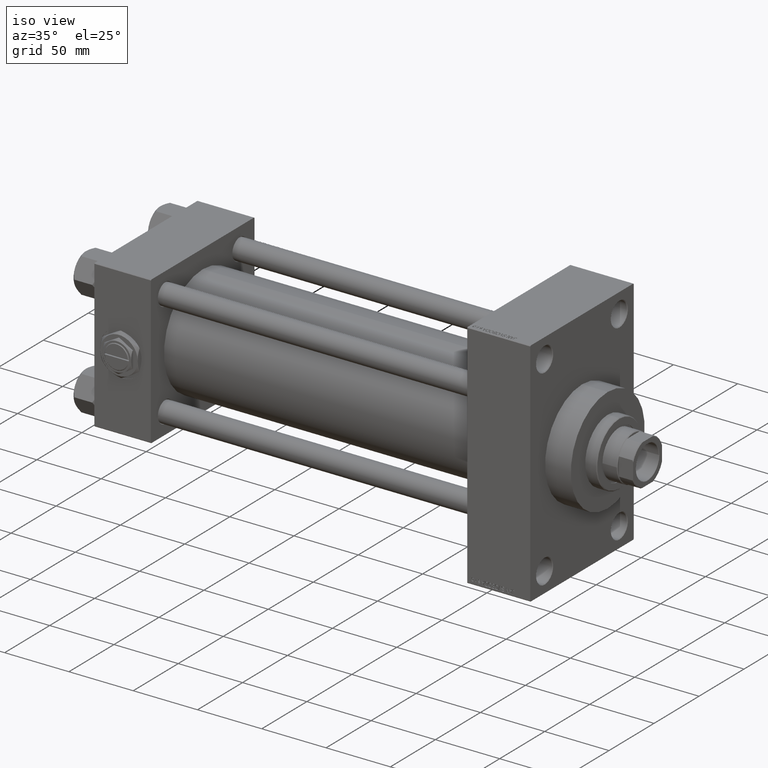
[diagram: clean part render]
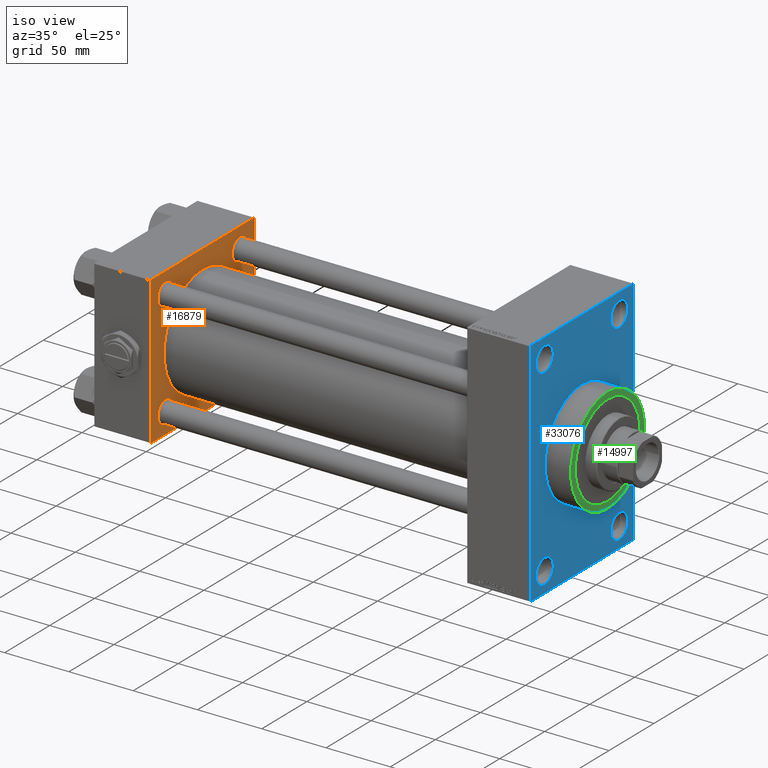
[diagram: same view with three faces highlighted in distinct colors, each labeled with its STEP entity id]
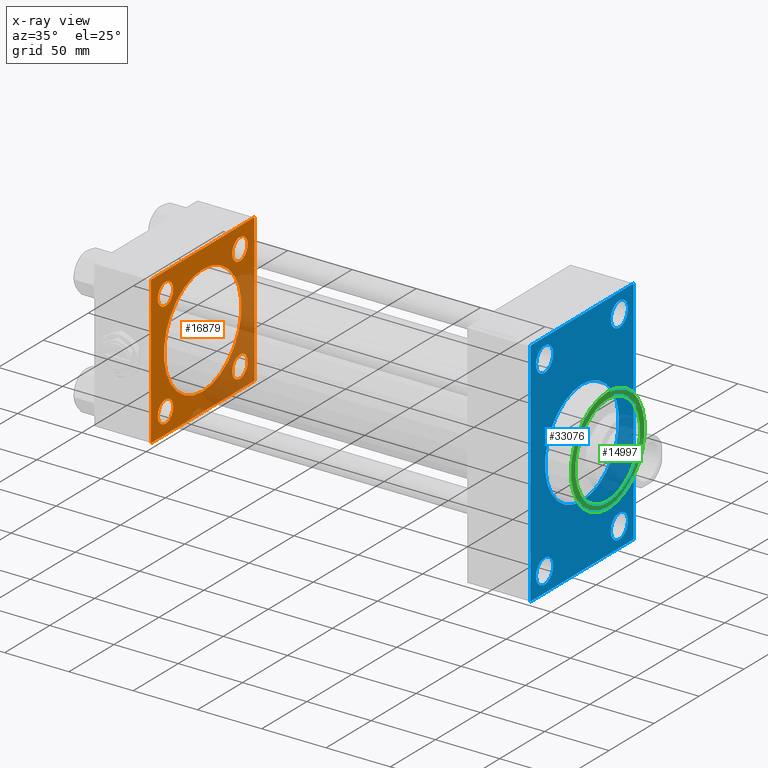
[diagram: x-ray of the same camera — body ghosted, the three highlighted faces saturated]
A machine part, iso view with three faces highlighted in distinct colors.
The next image is the same camera in x-ray (body ghosted, the three faces saturated) — at least one of them is partly hidden behind the body in this view.
Their STEP definitions:

[orange] entity #16879 — the highlighted planar face has unit normal (-1, 0, 0).
#303 = LINE ( 'NONE', #26918, #36625 ) ;
#626 = FACE_BOUND ( 'NONE', #36610, .T. ) ;
#852 = DIRECTION ( 'NONE',  ( -0.000000000000000000, 0.7071067811865376918, 0.7071067811865573427 ) ) ;
#853 = VERTEX_POINT ( 'NONE', #28329 ) ;
#901 = CARTESIAN_POINT ( 'NONE',  ( 44.00000000000000000, -41.34999999999998721, -32.85000000000005826 ) ) ;
#2321 = VECTOR ( 'NONE', #852, 1000.000000000000114 ) ;
#2430 = LINE ( 'NONE', #47950, #36519 ) ;
#3241 = AXIS2_PLACEMENT_3D ( 'NONE', #20501, #35679, #47121 ) ;
#3505 = EDGE_CURVE ( 'NONE', #49082, #28410, #20841, .T. ) ;
#3651 = ORIENTED_EDGE ( 'NONE', *, *, #6758, .F. ) ;
#4539 = EDGE_CURVE ( 'NONE', #13896, #28595, #19366, .T. ) ;
#4927 = ORIENTED_EDGE ( 'NONE', *, *, #42388, .T. ) ;
#4967 = VERTEX_POINT ( 'NONE', #19803 ) ;
#6276 = DIRECTION ( 'NONE',  ( -1.000000000000000000, 0.000000000000000000, -0.000000000000000000 ) ) ;
#6300 = ORIENTED_EDGE ( 'NONE', *, *, #17877, .T. ) ;
#6517 = AXIS2_PLACEMENT_3D ( 'NONE', #11052, #25763, #10815 ) ;
#6531 = AXIS2_PLACEMENT_3D ( 'NONE', #41017, #48474, #38274 ) ;
#6682 = DIRECTION ( 'NONE',  ( 0.000000000000000000, 0.000000000000000000, -1.000000000000000000 ) ) ;
#6758 = EDGE_CURVE ( 'NONE', #31139, #22701, #27710, .T. ) ;
#7434 = CARTESIAN_POINT ( 'NONE',  ( 44.00000000000000000, -41.34999999999998721, -41.35000000000000853 ) ) ;
#7656 = EDGE_LOOP ( 'NONE', ( #26384, #37505 ) ) ;
#8092 = FACE_BOUND ( 'NONE', #23545, .T. ) ;
#8582 = CARTESIAN_POINT ( 'NONE',  ( 44.00000000000000000, 41.34999999999999432, -32.85000000000005116 ) ) ;
#9287 = CARTESIAN_POINT ( 'NONE',  ( 44.00000000000000000, -57.00000000000000711, -57.50000000000000711 ) ) ;
#9547 = DIRECTION ( 'NONE',  ( -1.000000000000000000, 0.000000000000000000, -0.000000000000000000 ) ) ;
#10249 = DIRECTION ( 'NONE',  ( -1.000000000000000000, 0.000000000000000000, -0.000000000000000000 ) ) ;
#10815 = DIRECTION ( 'NONE',  ( 0.000000000000000000, 0.000000000000000000, 1.000000000000000000 ) ) ;
#11010 = CARTESIAN_POINT ( 'NONE',  ( 43.99999999999998579, -2.602085213965210642E-15, 43.00000000000000000 ) ) ;
#11052 = CARTESIAN_POINT ( 'NONE',  ( 44.00000000000000000, 41.34999999999999432, -41.35000000000000142 ) ) ;
#11107 = EDGE_CURVE ( 'NONE', #26900, #32569, #33383, .T. ) ;
#11150 = CARTESIAN_POINT ( 'NONE',  ( 44.00000000000000000, 57.49999999999999289, -57.49999999999999289 ) ) ;
#11758 = DIRECTION ( 'NONE',  ( 0.000000000000000000, -1.000000000000000000, -1.206764157201257045E-16 ) ) ;
#12266 = CARTESIAN_POINT ( 'NONE',  ( 44.00000000000000000, -57.50000000000000711, 57.00000000000000711 ) ) ;
#12775 = LINE ( 'NONE', #9287, #19111 ) ;
#13896 = VERTEX_POINT ( 'NONE', #901 ) ;
#14075 = ORIENTED_EDGE ( 'NONE', *, *, #11107, .T. ) ;
#14321 = EDGE_CURVE ( 'NONE', #853, #45401, #36795, .T. ) ;
#14894 = EDGE_CURVE ( 'NONE', #27938, #45401, #12775, .T. ) ;
#15027 = EDGE_CURVE ( 'NONE', #32569, #26900, #48514, .T. ) ;
#15265 = CARTESIAN_POINT ( 'NONE',  ( 44.00000000000000000, -41.34999999999998721, 32.85000000000005826 ) ) ;
#15454 = CIRCLE ( 'NONE', #46440, 8.499999999999952038 ) ;
#15534 = CARTESIAN_POINT ( 'NONE',  ( 44.00000000000000000, -41.34999999999998721, 49.84999999999996589 ) ) ;
#15971 = CIRCLE ( 'NONE', #28683, 8.499999999999952038 ) ;
#16158 = EDGE_CURVE ( 'NONE', #16420, #4967, #303, .T. ) ;
#16353 = ORIENTED_EDGE ( 'NONE', *, *, #41184, .T. ) ;
#16390 = CARTESIAN_POINT ( 'NONE',  ( 44.00000000000000000, 57.49999999999999289, 57.00000000000003553 ) ) ;
#16420 = VERTEX_POINT ( 'NONE', #16390 ) ;
#16775 = FACE_BOUND ( 'NONE', #34621, .T. ) ;
#16879 = ADVANCED_FACE ( 'NONE', ( #24254, #626, #27498, #8092, #16775, #42664 ), #23256, .F. ) ;
#16974 = EDGE_CURVE ( 'NONE', #27255, #44463, #15971, .T. ) ;
#17335 = DIRECTION ( 'NONE',  ( 0.000000000000000000, 0.000000000000000000, 1.000000000000000000 ) ) ;
#17378 = ORIENTED_EDGE ( 'NONE', *, *, #3505, .T. ) ;
#17877 = EDGE_CURVE ( 'NONE', #46989, #42564, #27931, .T. ) ;
#17885 = ORIENTED_EDGE ( 'NONE', *, *, #30225, .T. ) ;
#17906 = EDGE_CURVE ( 'NONE', #22701, #31139, #23976, .T. ) ;
#17968 = DIRECTION ( 'NONE',  ( 0.000000000000000000, 0.000000000000000000, 1.000000000000000000 ) ) ;
#18249 = EDGE_CURVE ( 'NONE', #42564, #27938, #24863, .T. ) ;
#18680 = CARTESIAN_POINT ( 'NONE',  ( 43.99999999999998579, -2.602085213965210642E-15, 0.000000000000000000 ) ) ;
#18776 = CARTESIAN_POINT ( 'NONE',  ( 43.99999999999998579, 2.663896022368408223E-15, -43.00000000000000000 ) ) ;
#18857 = DIRECTION ( 'NONE',  ( 0.000000000000000000, 0.000000000000000000, 1.000000000000000000 ) ) ;
#19111 = VECTOR ( 'NONE', #38914, 1000.000000000000114 ) ;
#19366 = CIRCLE ( 'NONE', #20201, 8.499999999999952038 ) ;
#19711 = DIRECTION ( 'NONE',  ( -0.000000000000000000, -0.7071067811865376918, -0.7071067811865573427 ) ) ;
#19737 = LINE ( 'NONE', #23980, #2321 ) ;
#19803 = CARTESIAN_POINT ( 'NONE',  ( 44.00000000000000000, 57.00000000000000711, 57.50000000000000711 ) ) ;
#20201 = AXIS2_PLACEMENT_3D ( 'NONE', #7434, #26092, #18857 ) ;
#20260 = VECTOR ( 'NONE', #11758, 1000.000000000000000 ) ;
#20501 = CARTESIAN_POINT ( 'NONE',  ( 44.00000000000000000, 0.000000000000000000, 0.000000000000000000 ) ) ;
#20841 = CIRCLE ( 'NONE', #6531, 8.499999999999952038 ) ;
#22701 = VERTEX_POINT ( 'NONE', #18776 ) ;
#22744 = EDGE_LOOP ( 'NONE', ( #16353, #17378 ) ) ;
#23116 = ORIENTED_EDGE ( 'NONE', *, *, #16158, .T. ) ;
#23175 = AXIS2_PLACEMENT_3D ( 'NONE', #30926, #23702, #34902 ) ;
#23181 = DIRECTION ( 'NONE',  ( -1.000000000000000000, 0.000000000000000000, -0.000000000000000000 ) ) ;
#23200 = CARTESIAN_POINT ( 'NONE',  ( 44.00000000000000000, 57.49999999999999289, 57.50000000000000711 ) ) ;
#23256 = PLANE ( 'NONE',  #3241 ) ;
#23545 = EDGE_LOOP ( 'NONE', ( #47656, #14075 ) ) ;
#23553 = ORIENTED_EDGE ( 'NONE', *, *, #14894, .T. ) ;
#23581 = CARTESIAN_POINT ( 'NONE',  ( 44.00000000000000000, 41.34999999999999432, -49.84999999999995879 ) ) ;
#23702 = DIRECTION ( 'NONE',  ( 1.000000000000000000, -0.000000000000000000, 0.000000000000000000 ) ) ;
#23736 = CARTESIAN_POINT ( 'NONE',  ( 44.00000000000000000, -41.34999999999998721, -49.84999999999996589 ) ) ;
#23976 = CIRCLE ( 'NONE', #23175, 43.00000000000000000 ) ;
#23980 = CARTESIAN_POINT ( 'NONE',  ( 44.00000000000000000, 57.49999999999999289, -57.00000000000000711 ) ) ;
#24254 = FACE_BOUND ( 'NONE', #7656, .T. ) ;
#24534 = CIRCLE ( 'NONE', #41998, 8.499999999999952038 ) ;
#24637 = VECTOR ( 'NONE', #41263, 1000.000000000000000 ) ;
#24863 = LINE ( 'NONE', #36291, #26361 ) ;
#24945 = CARTESIAN_POINT ( 'NONE',  ( 44.00000000000000000, -41.34999999999998721, 41.35000000000000853 ) ) ;
#25763 = DIRECTION ( 'NONE',  ( -1.000000000000000000, 0.000000000000000000, -0.000000000000000000 ) ) ;
#25979 = DIRECTION ( 'NONE',  ( -1.000000000000000000, 0.000000000000000000, -0.000000000000000000 ) ) ;
#26036 = ORIENTED_EDGE ( 'NONE', *, *, #14321, .F. ) ;
#26092 = DIRECTION ( 'NONE',  ( -1.000000000000000000, 0.000000000000000000, -0.000000000000000000 ) ) ;
#26361 = VECTOR ( 'NONE', #6682, 1000.000000000000000 ) ;
#26384 = ORIENTED_EDGE ( 'NONE', *, *, #28386, .T. ) ;
#26636 = CARTESIAN_POINT ( 'NONE',  ( 44.00000000000000000, -57.00000000000003553, 57.49999999999999289 ) ) ;
#26900 = VERTEX_POINT ( 'NONE', #35563 ) ;
#26918 = CARTESIAN_POINT ( 'NONE',  ( 44.00000000000000000, 57.00000000000000711, 57.50000000000000711 ) ) ;
#27156 = DIRECTION ( 'NONE',  ( 0.000000000000000000, 0.000000000000000000, 1.000000000000000000 ) ) ;
#27159 = CARTESIAN_POINT ( 'NONE',  ( 44.00000000000000000, -57.50000000000000711, 57.00000000000000711 ) ) ;
#27255 = VERTEX_POINT ( 'NONE', #23581 ) ;
#27498 = FACE_BOUND ( 'NONE', #22744, .T. ) ;
#27710 = CIRCLE ( 'NONE', #38020, 43.00000000000000000 ) ;
#27931 = LINE ( 'NONE', #12266, #33499 ) ;
#27938 = VERTEX_POINT ( 'NONE', #44809 ) ;
#28329 = CARTESIAN_POINT ( 'NONE',  ( 44.00000000000000000, 57.00000000000002132, -57.49999999999999289 ) ) ;
#28386 = EDGE_CURVE ( 'NONE', #28595, #13896, #15454, .T. ) ;
#28410 = VERTEX_POINT ( 'NONE', #15265 ) ;
#28595 = VERTEX_POINT ( 'NONE', #23736 ) ;
#28683 = AXIS2_PLACEMENT_3D ( 'NONE', #32188, #9547, #17968 ) ;
#29046 = DIRECTION ( 'NONE',  ( 0.000000000000000000, 0.000000000000000000, -1.000000000000000000 ) ) ;
#29154 = DIRECTION ( 'NONE',  ( 0.000000000000000000, 0.000000000000000000, 1.000000000000000000 ) ) ;
#29961 = VERTEX_POINT ( 'NONE', #45668 ) ;
#30225 = EDGE_CURVE ( 'NONE', #4967, #46989, #45826, .T. ) ;
#30926 = CARTESIAN_POINT ( 'NONE',  ( 43.99999999999998579, -2.602085213965210642E-15, 0.000000000000000000 ) ) ;
#31139 = VERTEX_POINT ( 'NONE', #11010 ) ;
#31474 = CARTESIAN_POINT ( 'NONE',  ( 44.00000000000000000, -57.00000000000000711, -57.50000000000000711 ) ) ;
#32188 = CARTESIAN_POINT ( 'NONE',  ( 44.00000000000000000, 41.34999999999999432, -41.35000000000000142 ) ) ;
#32569 = VERTEX_POINT ( 'NONE', #42260 ) ;
#32762 = CIRCLE ( 'NONE', #6517, 8.499999999999952038 ) ;
#32933 = EDGE_LOOP ( 'NONE', ( #26036, #4927, #48707, #23116, #17885, #6300, #43737, #23553 ) ) ;
#33122 = CARTESIAN_POINT ( 'NONE',  ( 44.00000000000000000, 41.34999999999999432, 41.35000000000000142 ) ) ;
#33383 = CIRCLE ( 'NONE', #44512, 8.499999999999952038 ) ;
#33499 = VECTOR ( 'NONE', #19711, 1000.000000000000114 ) ;
#34621 = EDGE_LOOP ( 'NONE', ( #3651, #40829 ) ) ;
#34902 = DIRECTION ( 'NONE',  ( 0.000000000000000000, 0.000000000000000000, 1.000000000000000000 ) ) ;
#35563 = CARTESIAN_POINT ( 'NONE',  ( 44.00000000000000000, 41.34999999999999432, 49.84999999999995879 ) ) ;
#35679 = DIRECTION ( 'NONE',  ( -1.000000000000000000, 0.000000000000000000, -0.000000000000000000 ) ) ;
#35821 = AXIS2_PLACEMENT_3D ( 'NONE', #33122, #6276, #29154 ) ;
#36145 = DIRECTION ( 'NONE',  ( 0.000000000000000000, 0.000000000000000000, 1.000000000000000000 ) ) ;
#36261 = CARTESIAN_POINT ( 'NONE',  ( 44.00000000000000000, -41.34999999999998721, -41.35000000000000853 ) ) ;
#36291 = CARTESIAN_POINT ( 'NONE',  ( 44.00000000000000000, -57.50000000000000711, 57.49999999999999289 ) ) ;
#36519 = VECTOR ( 'NONE', #29046, 1000.000000000000000 ) ;
#36610 = EDGE_LOOP ( 'NONE', ( #47595, #47695 ) ) ;
#36625 = VECTOR ( 'NONE', #42346, 1000.000000000000114 ) ;
#36795 = LINE ( 'NONE', #11150, #24637 ) ;
#37505 = ORIENTED_EDGE ( 'NONE', *, *, #4539, .T. ) ;
#38020 = AXIS2_PLACEMENT_3D ( 'NONE', #18680, #49025, #27156 ) ;
#38274 = DIRECTION ( 'NONE',  ( 0.000000000000000000, 0.000000000000000000, 1.000000000000000000 ) ) ;
#38369 = DIRECTION ( 'NONE',  ( 0.000000000000000000, 0.000000000000000000, 1.000000000000000000 ) ) ;
#38914 = DIRECTION ( 'NONE',  ( 0.000000000000000000, 0.7071067811865474617, -0.7071067811865474617 ) ) ;
#40829 = ORIENTED_EDGE ( 'NONE', *, *, #17906, .F. ) ;
#41017 = CARTESIAN_POINT ( 'NONE',  ( 44.00000000000000000, -41.34999999999998721, 41.35000000000000853 ) ) ;
#41184 = EDGE_CURVE ( 'NONE', #28410, #49082, #24534, .T. ) ;
#41263 = DIRECTION ( 'NONE',  ( 0.000000000000000000, -1.000000000000000000, -1.206764157201257045E-16 ) ) ;
#41998 = AXIS2_PLACEMENT_3D ( 'NONE', #24945, #10249, #36145 ) ;
#42260 = CARTESIAN_POINT ( 'NONE',  ( 44.00000000000000000, 41.34999999999999432, 32.85000000000005116 ) ) ;
#42346 = DIRECTION ( 'NONE',  ( 0.000000000000000000, -0.7071067811865573427, 0.7071067811865376918 ) ) ;
#42388 = EDGE_CURVE ( 'NONE', #853, #29961, #19737, .T. ) ;
#42564 = VERTEX_POINT ( 'NONE', #27159 ) ;
#42664 = FACE_OUTER_BOUND ( 'NONE', #32933, .T. ) ;
#43737 = ORIENTED_EDGE ( 'NONE', *, *, #18249, .T. ) ;
#43763 = EDGE_CURVE ( 'NONE', #16420, #29961, #2430, .T. ) ;
#44463 = VERTEX_POINT ( 'NONE', #8582 ) ;
#44512 = AXIS2_PLACEMENT_3D ( 'NONE', #45305, #23181, #38369 ) ;
#44809 = CARTESIAN_POINT ( 'NONE',  ( 44.00000000000000000, -57.50000000000000711, -57.00000000000000711 ) ) ;
#45305 = CARTESIAN_POINT ( 'NONE',  ( 44.00000000000000000, 41.34999999999999432, 41.35000000000000142 ) ) ;
#45401 = VERTEX_POINT ( 'NONE', #31474 ) ;
#45668 = CARTESIAN_POINT ( 'NONE',  ( 44.00000000000000000, 57.49999999999999289, -57.00000000000000711 ) ) ;
#45826 = LINE ( 'NONE', #23200, #20260 ) ;
#46440 = AXIS2_PLACEMENT_3D ( 'NONE', #36261, #25979, #17335 ) ;
#46989 = VERTEX_POINT ( 'NONE', #26636 ) ;
#47121 = DIRECTION ( 'NONE',  ( -0.000000000000000000, 0.000000000000000000, 1.000000000000000000 ) ) ;
#47595 = ORIENTED_EDGE ( 'NONE', *, *, #16974, .T. ) ;
#47656 = ORIENTED_EDGE ( 'NONE', *, *, #15027, .T. ) ;
#47695 = ORIENTED_EDGE ( 'NONE', *, *, #49160, .T. ) ;
#47950 = CARTESIAN_POINT ( 'NONE',  ( 44.00000000000000000, 57.49999999999999289, 57.50000000000000711 ) ) ;
#48474 = DIRECTION ( 'NONE',  ( -1.000000000000000000, 0.000000000000000000, -0.000000000000000000 ) ) ;
#48514 = CIRCLE ( 'NONE', #35821, 8.499999999999952038 ) ;
#48707 = ORIENTED_EDGE ( 'NONE', *, *, #43763, .F. ) ;
#49025 = DIRECTION ( 'NONE',  ( 1.000000000000000000, -0.000000000000000000, 0.000000000000000000 ) ) ;
#49082 = VERTEX_POINT ( 'NONE', #15534 ) ;
#49160 = EDGE_CURVE ( 'NONE', #44463, #27255, #32762, .T. ) ;

[blue] entity #33076 — the highlighted planar face has unit normal (-1, 0, 0).
#717 = EDGE_CURVE ( 'NONE', #15931, #47704, #21504, .T. ) ;
#752 = DIRECTION ( 'NONE',  ( 0.000000000000000000, 0.000000000000000000, 1.000000000000000000 ) ) ;
#834 = VERTEX_POINT ( 'NONE', #35796 ) ;
#938 = EDGE_CURVE ( 'NONE', #48925, #45868, #40507, .T. ) ;
#946 = CIRCLE ( 'NONE', #1746, 9.500000000000063949 ) ;
#1033 = DIRECTION ( 'NONE',  ( -1.000000000000000000, 0.000000000000000000, -0.000000000000000000 ) ) ;
#1566 = AXIS2_PLACEMENT_3D ( 'NONE', #13625, #25560, #40739 ) ;
#1666 = CIRCLE ( 'NONE', #47708, 41.00000000000000000 ) ;
#1746 = AXIS2_PLACEMENT_3D ( 'NONE', #32561, #48893, #14796 ) ;
#2242 = ORIENTED_EDGE ( 'NONE', *, *, #17632, .T. ) ;
#2615 = CARTESIAN_POINT ( 'NONE',  ( 338.9999999999999432, -41.49999999999999289, 84.00000000000007105 ) ) ;
#2622 = EDGE_CURVE ( 'NONE', #41607, #43762, #946, .T. ) ;
#3491 = VECTOR ( 'NONE', #15301, 1000.000000000000000 ) ;
#3712 = AXIS2_PLACEMENT_3D ( 'NONE', #29301, #32550, #9913 ) ;
#3940 = CARTESIAN_POINT ( 'NONE',  ( 338.9999999999999432, 41.50000000000000711, 64.99999999999994316 ) ) ;
#4193 = ORIENTED_EDGE ( 'NONE', *, *, #2622, .T. ) ;
#4478 = CARTESIAN_POINT ( 'NONE',  ( 338.9999999999999432, 41.50000000000000711, -74.50000000000000000 ) ) ;
#4602 = DIRECTION ( 'NONE',  ( -0.000000000000000000, 0.000000000000000000, 1.000000000000000000 ) ) ;
#4710 = ORIENTED_EDGE ( 'NONE', *, *, #33581, .F. ) ;
#4787 = ORIENTED_EDGE ( 'NONE', *, *, #34137, .T. ) ;
#5222 = VERTEX_POINT ( 'NONE', #25977 ) ;
#5316 = VERTEX_POINT ( 'NONE', #8323 ) ;
#6057 = CARTESIAN_POINT ( 'NONE',  ( 338.9999999999999432, -57.50000000000002132, -89.50000000000002842 ) ) ;
#7156 = DIRECTION ( 'NONE',  ( 0.000000000000000000, 0.000000000000000000, -1.000000000000000000 ) ) ;
#7646 = DIRECTION ( 'NONE',  ( 1.000000000000000000, 0.000000000000000000, 0.000000000000000000 ) ) ;
#8227 = EDGE_CURVE ( 'NONE', #8405, #21241, #37263, .T. ) ;
#8323 = CARTESIAN_POINT ( 'NONE',  ( 338.9999999999999432, 57.00000000000003553, -90.00000000000000000 ) ) ;
#8405 = VERTEX_POINT ( 'NONE', #44623 ) ;
#8586 = DIRECTION ( 'NONE',  ( -1.000000000000000000, 0.000000000000000000, -0.000000000000000000 ) ) ;
#8680 = DIRECTION ( 'NONE',  ( 0.000000000000000000, -0.7071067811865867636, 0.7071067811865081598 ) ) ;
#8698 = ORIENTED_EDGE ( 'NONE', *, *, #11935, .F. ) ;
#9080 = FACE_OUTER_BOUND ( 'NONE', #31181, .T. ) ;
#9453 = EDGE_CURVE ( 'NONE', #834, #22158, #22985, .T. ) ;
#9913 = DIRECTION ( 'NONE',  ( 0.000000000000000000, 0.000000000000000000, 1.000000000000000000 ) ) ;
#11131 = EDGE_LOOP ( 'NONE', ( #37775, #49048 ) ) ;
#11935 = EDGE_CURVE ( 'NONE', #34794, #25426, #1666, .T. ) ;
#12272 = VERTEX_POINT ( 'NONE', #6057 ) ;
#12472 = AXIS2_PLACEMENT_3D ( 'NONE', #42230, #7646, #7156 ) ;
#12575 = DIRECTION ( 'NONE',  ( 0.000000000000000000, 0.000000000000000000, 1.000000000000000000 ) ) ;
#12799 = FACE_BOUND ( 'NONE', #34371, .T. ) ;
#13625 = CARTESIAN_POINT ( 'NONE',  ( 338.9999999999999432, -41.49999999999999289, -74.49999999999998579 ) ) ;
#13813 = EDGE_CURVE ( 'NONE', #47704, #15931, #45279, .T. ) ;
#14144 = DIRECTION ( 'NONE',  ( 0.000000000000000000, -1.000000000000000000, -1.206764157201257045E-16 ) ) ;
#14242 = LINE ( 'NONE', #44353, #45390 ) ;
#14453 = ORIENTED_EDGE ( 'NONE', *, *, #32351, .F. ) ;
#14796 = DIRECTION ( 'NONE',  ( 0.000000000000000000, 0.000000000000000000, 1.000000000000000000 ) ) ;
#15289 = ORIENTED_EDGE ( 'NONE', *, *, #9453, .T. ) ;
#15301 = DIRECTION ( 'NONE',  ( -0.000000000000000000, -0.7071067811865131558, -0.7071067811865818786 ) ) ;
#15783 = FACE_BOUND ( 'NONE', #43573, .T. ) ;
#15931 = VERTEX_POINT ( 'NONE', #35907 ) ;
#15939 = CARTESIAN_POINT ( 'NONE',  ( 338.9999999999999432, 41.50000000000000711, 74.50000000000001421 ) ) ;
#15986 = VECTOR ( 'NONE', #29781, 1000.000000000000000 ) ;
#16469 = DIRECTION ( 'NONE',  ( -0.000000000000000000, 0.7071067811865181518, 0.7071067811865769936 ) ) ;
#16615 = ORIENTED_EDGE ( 'NONE', *, *, #33536, .T. ) ;
#17006 = CARTESIAN_POINT ( 'NONE',  ( 338.9999999999999432, 0.000000000000000000, 41.00000000000000000 ) ) ;
#17632 = EDGE_CURVE ( 'NONE', #29131, #12272, #14242, .T. ) ;
#18016 = CIRCLE ( 'NONE', #12472, 41.00000000000000000 ) ;
#18393 = EDGE_LOOP ( 'NONE', ( #4710, #8698 ) ) ;
#19198 = CARTESIAN_POINT ( 'NONE',  ( 338.9999999999999432, 57.49999999999997158, 89.99999999999998579 ) ) ;
#19696 = AXIS2_PLACEMENT_3D ( 'NONE', #15939, #1033, #35101 ) ;
#20265 = FACE_BOUND ( 'NONE', #11131, .T. ) ;
#20351 = CARTESIAN_POINT ( 'NONE',  ( 338.9999999999999432, 56.99999999999992184, 89.99999999999998579 ) ) ;
#20558 = CARTESIAN_POINT ( 'NONE',  ( 338.9999999999999432, 0.000000000000000000, 0.000000000000000000 ) ) ;
#21241 = VERTEX_POINT ( 'NONE', #2615 ) ;
#21427 = ORIENTED_EDGE ( 'NONE', *, *, #35734, .T. ) ;
#21504 = CIRCLE ( 'NONE', #38216, 9.500000000000063949 ) ;
#22158 = VERTEX_POINT ( 'NONE', #35559 ) ;
#22650 = EDGE_CURVE ( 'NONE', #5222, #29131, #38456, .T. ) ;
#22787 = CARTESIAN_POINT ( 'NONE',  ( 338.9999999999999432, -41.49999999999999289, 74.50000000000001421 ) ) ;
#22847 = VECTOR ( 'NONE', #14144, 1000.000000000000000 ) ;
#22985 = CIRCLE ( 'NONE', #1566, 9.499999999999896971 ) ;
#24253 = PLANE ( 'NONE',  #33960 ) ;
#24267 = DIRECTION ( 'NONE',  ( 0.000000000000000000, 0.7071067811865965336, -0.7071067811864985009 ) ) ;
#24846 = DIRECTION ( 'NONE',  ( 0.000000000000000000, 0.000000000000000000, 1.000000000000000000 ) ) ;
#25033 = DIRECTION ( 'NONE',  ( 1.000000000000000000, 0.000000000000000000, 0.000000000000000000 ) ) ;
#25079 = CARTESIAN_POINT ( 'NONE',  ( 338.9999999999999432, 41.50000000000000711, 84.00000000000007105 ) ) ;
#25226 = EDGE_CURVE ( 'NONE', #21241, #8405, #41708, .T. ) ;
#25426 = VERTEX_POINT ( 'NONE', #17006 ) ;
#25560 = DIRECTION ( 'NONE',  ( -1.000000000000000000, 0.000000000000000000, -0.000000000000000000 ) ) ;
#25819 = CARTESIAN_POINT ( 'NONE',  ( 338.9999999999999432, 57.49999999999997158, 89.99999999999998579 ) ) ;
#25977 = CARTESIAN_POINT ( 'NONE',  ( 338.9999999999999432, -57.00000000000007105, 89.99999999999997158 ) ) ;
#26038 = DIRECTION ( 'NONE',  ( 0.000000000000000000, 0.000000000000000000, 1.000000000000000000 ) ) ;
#26133 = EDGE_LOOP ( 'NONE', ( #4193, #21427 ) ) ;
#26539 = DIRECTION ( 'NONE',  ( -1.000000000000000000, 0.000000000000000000, -0.000000000000000000 ) ) ;
#27261 = LINE ( 'NONE', #42675, #29946 ) ;
#27342 = LINE ( 'NONE', #20351, #46698 ) ;
#27608 = DIRECTION ( 'NONE',  ( -1.000000000000000000, 0.000000000000000000, -0.000000000000000000 ) ) ;
#27617 = ORIENTED_EDGE ( 'NONE', *, *, #36331, .T. ) ;
#27981 = FACE_BOUND ( 'NONE', #26133, .T. ) ;
#28177 = ORIENTED_EDGE ( 'NONE', *, *, #717, .T. ) ;
#28992 = AXIS2_PLACEMENT_3D ( 'NONE', #47465, #36275, #24846 ) ;
#29131 = VERTEX_POINT ( 'NONE', #36266 ) ;
#29301 = CARTESIAN_POINT ( 'NONE',  ( 338.9999999999999432, -41.49999999999999289, -74.49999999999998579 ) ) ;
#29431 = DIRECTION ( 'NONE',  ( 0.000000000000000000, 0.000000000000000000, -1.000000000000000000 ) ) ;
#29781 = DIRECTION ( 'NONE',  ( 0.000000000000000000, 3.854941057726238467E-17, -1.000000000000000000 ) ) ;
#29919 = ORIENTED_EDGE ( 'NONE', *, *, #22650, .T. ) ;
#29946 = VECTOR ( 'NONE', #24267, 1000.000000000000114 ) ;
#30456 = EDGE_CURVE ( 'NONE', #5316, #45868, #38883, .T. ) ;
#30588 = CARTESIAN_POINT ( 'NONE',  ( 338.9999999999999432, 41.50000000000000711, -84.00000000000005684 ) ) ;
#30692 = ORIENTED_EDGE ( 'NONE', *, *, #938, .F. ) ;
#31181 = EDGE_LOOP ( 'NONE', ( #2242, #4787, #14453, #36649, #30692, #43282, #27617, #29919 ) ) ;
#32351 = EDGE_CURVE ( 'NONE', #5316, #36302, #36794, .T. ) ;
#32488 = DIRECTION ( 'NONE',  ( 0.000000000000000000, 0.000000000000000000, -1.000000000000000000 ) ) ;
#32550 = DIRECTION ( 'NONE',  ( -1.000000000000000000, 0.000000000000000000, -0.000000000000000000 ) ) ;
#32561 = CARTESIAN_POINT ( 'NONE',  ( 338.9999999999999432, 41.50000000000000711, 74.50000000000001421 ) ) ;
#32588 = EDGE_CURVE ( 'NONE', #48925, #37931, #27342, .T. ) ;
#33076 = ADVANCED_FACE ( 'NONE', ( #20265, #12799, #15783, #27981, #38937, #9080 ), #24253, .F. ) ;
#33336 = CARTESIAN_POINT ( 'NONE',  ( 338.9999999999999432, 57.49999999999997868, -89.49999999999995737 ) ) ;
#33536 = EDGE_CURVE ( 'NONE', #22158, #834, #35506, .T. ) ;
#33581 = EDGE_CURVE ( 'NONE', #25426, #34794, #18016, .T. ) ;
#33960 = AXIS2_PLACEMENT_3D ( 'NONE', #42160, #8586, #4602 ) ;
#34137 = EDGE_CURVE ( 'NONE', #12272, #36302, #27261, .T. ) ;
#34371 = EDGE_LOOP ( 'NONE', ( #16615, #15289 ) ) ;
#34645 = CARTESIAN_POINT ( 'NONE',  ( 338.9999999999999432, -57.00000000000002132, -90.00000000000001421 ) ) ;
#34718 = DIRECTION ( 'NONE',  ( -1.000000000000000000, 0.000000000000000000, -0.000000000000000000 ) ) ;
#34794 = VERTEX_POINT ( 'NONE', #48169 ) ;
#34890 = DIRECTION ( 'NONE',  ( 0.000000000000000000, -1.000000000000000000, -1.206764157201257291E-16 ) ) ;
#35101 = DIRECTION ( 'NONE',  ( 0.000000000000000000, 0.000000000000000000, 1.000000000000000000 ) ) ;
#35255 = CARTESIAN_POINT ( 'NONE',  ( 338.9999999999999432, 57.49999999999997158, 89.49999999999998579 ) ) ;
#35506 = CIRCLE ( 'NONE', #3712, 9.499999999999896971 ) ;
#35559 = CARTESIAN_POINT ( 'NONE',  ( 338.9999999999999432, -41.49999999999999289, -83.99999999999988631 ) ) ;
#35734 = EDGE_CURVE ( 'NONE', #43762, #41607, #43530, .T. ) ;
#35796 = CARTESIAN_POINT ( 'NONE',  ( 338.9999999999999432, -41.49999999999999289, -65.00000000000008527 ) ) ;
#35907 = CARTESIAN_POINT ( 'NONE',  ( 338.9999999999999432, 41.50000000000000711, -64.99999999999992895 ) ) ;
#36266 = CARTESIAN_POINT ( 'NONE',  ( 338.9999999999999432, -57.50000000000002132, 89.49999999999997158 ) ) ;
#36275 = DIRECTION ( 'NONE',  ( -1.000000000000000000, 0.000000000000000000, -0.000000000000000000 ) ) ;
#36302 = VERTEX_POINT ( 'NONE', #34645 ) ;
#36310 = CARTESIAN_POINT ( 'NONE',  ( 338.9999999999999432, 57.49999999999997868, -90.00000000000000000 ) ) ;
#36331 = EDGE_CURVE ( 'NONE', #37931, #5222, #45819, .T. ) ;
#36649 = ORIENTED_EDGE ( 'NONE', *, *, #30456, .T. ) ;
#36794 = LINE ( 'NONE', #36310, #22847 ) ;
#37263 = CIRCLE ( 'NONE', #46009, 9.500000000000063949 ) ;
#37775 = ORIENTED_EDGE ( 'NONE', *, *, #8227, .T. ) ;
#37931 = VERTEX_POINT ( 'NONE', #49142 ) ;
#37941 = CARTESIAN_POINT ( 'NONE',  ( 338.9999999999999432, -57.50000000000002132, 89.49999999999997158 ) ) ;
#38216 = AXIS2_PLACEMENT_3D ( 'NONE', #4478, #27608, #752 ) ;
#38456 = LINE ( 'NONE', #37941, #3491 ) ;
#38883 = LINE ( 'NONE', #43339, #39383 ) ;
#38937 = FACE_BOUND ( 'NONE', #18393, .T. ) ;
#39383 = VECTOR ( 'NONE', #16469, 1000.000000000000000 ) ;
#40507 = LINE ( 'NONE', #25819, #15986 ) ;
#40739 = DIRECTION ( 'NONE',  ( 0.000000000000000000, 0.000000000000000000, 1.000000000000000000 ) ) ;
#41607 = VERTEX_POINT ( 'NONE', #3940 ) ;
#41708 = CIRCLE ( 'NONE', #28992, 9.500000000000063949 ) ;
#41851 = ORIENTED_EDGE ( 'NONE', *, *, #13813, .T. ) ;
#42160 = CARTESIAN_POINT ( 'NONE',  ( 338.9999999999999432, 0.000000000000000000, 0.000000000000000000 ) ) ;
#42230 = CARTESIAN_POINT ( 'NONE',  ( 338.9999999999999432, 0.000000000000000000, 0.000000000000000000 ) ) ;
#42675 = CARTESIAN_POINT ( 'NONE',  ( 338.9999999999999432, -57.00000000000002132, -90.00000000000001421 ) ) ;
#42934 = AXIS2_PLACEMENT_3D ( 'NONE', #46656, #34718, #12575 ) ;
#43282 = ORIENTED_EDGE ( 'NONE', *, *, #32588, .T. ) ;
#43339 = CARTESIAN_POINT ( 'NONE',  ( 338.9999999999999432, 57.49999999999997868, -89.50000000000001421 ) ) ;
#43530 = CIRCLE ( 'NONE', #19696, 9.500000000000063949 ) ;
#43573 = EDGE_LOOP ( 'NONE', ( #41851, #28177 ) ) ;
#43762 = VERTEX_POINT ( 'NONE', #25079 ) ;
#44353 = CARTESIAN_POINT ( 'NONE',  ( 338.9999999999999432, -57.50000000000002132, 89.99999999999997158 ) ) ;
#44623 = CARTESIAN_POINT ( 'NONE',  ( 338.9999999999999432, -41.49999999999999289, 64.99999999999994316 ) ) ;
#45279 = CIRCLE ( 'NONE', #42934, 9.500000000000063949 ) ;
#45390 = VECTOR ( 'NONE', #29431, 1000.000000000000000 ) ;
#45819 = LINE ( 'NONE', #19198, #49089 ) ;
#45868 = VERTEX_POINT ( 'NONE', #33336 ) ;
#46009 = AXIS2_PLACEMENT_3D ( 'NONE', #22787, #26539, #26038 ) ;
#46656 = CARTESIAN_POINT ( 'NONE',  ( 338.9999999999999432, 41.50000000000000711, -74.50000000000000000 ) ) ;
#46698 = VECTOR ( 'NONE', #8680, 1000.000000000000000 ) ;
#47465 = CARTESIAN_POINT ( 'NONE',  ( 338.9999999999999432, -41.49999999999999289, 74.50000000000001421 ) ) ;
#47704 = VERTEX_POINT ( 'NONE', #30588 ) ;
#47708 = AXIS2_PLACEMENT_3D ( 'NONE', #20558, #25033, #32488 ) ;
#48169 = CARTESIAN_POINT ( 'NONE',  ( 338.9999999999999432, 5.021051876504148963E-15, -41.00000000000000000 ) ) ;
#48893 = DIRECTION ( 'NONE',  ( -1.000000000000000000, 0.000000000000000000, -0.000000000000000000 ) ) ;
#48925 = VERTEX_POINT ( 'NONE', #35255 ) ;
#49048 = ORIENTED_EDGE ( 'NONE', *, *, #25226, .T. ) ;
#49089 = VECTOR ( 'NONE', #34890, 1000.000000000000000 ) ;
#49142 = CARTESIAN_POINT ( 'NONE',  ( 338.9999999999999432, 56.99999999999992184, 89.99999999999998579 ) ) ;

[green] entity #14997 — the highlighted planar face has unit normal (1, 0, 0).
#751 = AXIS2_PLACEMENT_3D ( 'NONE', #36683, #44140, #5857 ) ;
#5857 = DIRECTION ( 'NONE',  ( 0.000000000000000000, 0.000000000000000000, -1.000000000000000000 ) ) ;
#6621 = CARTESIAN_POINT ( 'NONE',  ( 359.0000000000000000, 0.000000000000000000, 0.000000000000000000 ) ) ;
#7116 = AXIS2_PLACEMENT_3D ( 'NONE', #47399, #13328, #31513 ) ;
#7122 = ORIENTED_EDGE ( 'NONE', *, *, #43557, .T. ) ;
#7389 = CARTESIAN_POINT ( 'NONE',  ( 359.0000000000000000, 5.021051876504148963E-15, -41.00000000000000000 ) ) ;
#8670 = CIRCLE ( 'NONE', #751, 41.00000000000000000 ) ;
#8961 = EDGE_LOOP ( 'NONE', ( #7122, #25873 ) ) ;
#10006 = CARTESIAN_POINT ( 'NONE',  ( 359.0000000000000000, 0.000000000000000000, 0.000000000000000000 ) ) ;
#10402 = VERTEX_POINT ( 'NONE', #7389 ) ;
#10618 = EDGE_CURVE ( 'NONE', #42189, #18785, #18266, .T. ) ;
#13328 = DIRECTION ( 'NONE',  ( 1.000000000000000000, 0.000000000000000000, 0.000000000000000000 ) ) ;
#14997 = ADVANCED_FACE ( 'NONE', ( #28914, #21434 ), #18442, .T. ) ;
#16682 = CIRCLE ( 'NONE', #28614, 41.00000000000000000 ) ;
#17982 = CARTESIAN_POINT ( 'NONE',  ( 359.0000000000000000, 0.000000000000000000, 41.00000000000000000 ) ) ;
#18266 = CIRCLE ( 'NONE', #7116, 36.00000000000000000 ) ;
#18442 = PLANE ( 'NONE',  #27097 ) ;
#18542 = DIRECTION ( 'NONE',  ( 1.000000000000000000, 0.000000000000000000, 0.000000000000000000 ) ) ;
#18785 = VERTEX_POINT ( 'NONE', #41193 ) ;
#21434 = FACE_OUTER_BOUND ( 'NONE', #8961, .T. ) ;
#24399 = ORIENTED_EDGE ( 'NONE', *, *, #30754, .F. ) ;
#24588 = DIRECTION ( 'NONE',  ( 0.000000000000000000, 0.000000000000000000, -1.000000000000000000 ) ) ;
#25181 = DIRECTION ( 'NONE',  ( 1.000000000000000000, 0.000000000000000000, 0.000000000000000000 ) ) ;
#25873 = ORIENTED_EDGE ( 'NONE', *, *, #42088, .T. ) ;
#27097 = AXIS2_PLACEMENT_3D ( 'NONE', #10006, #25181, #47820 ) ;
#27193 = ORIENTED_EDGE ( 'NONE', *, *, #10618, .F. ) ;
#28614 = AXIS2_PLACEMENT_3D ( 'NONE', #43259, #32054, #24588 ) ;
#28914 = FACE_BOUND ( 'NONE', #41074, .T. ) ;
#30754 = EDGE_CURVE ( 'NONE', #18785, #42189, #35393, .T. ) ;
#31513 = DIRECTION ( 'NONE',  ( 0.000000000000000000, 0.000000000000000000, -1.000000000000000000 ) ) ;
#32054 = DIRECTION ( 'NONE',  ( 1.000000000000000000, 0.000000000000000000, 0.000000000000000000 ) ) ;
#32714 = CARTESIAN_POINT ( 'NONE',  ( 359.0000000000000000, 4.408728476930470856E-15, 36.00000000000000000 ) ) ;
#32750 = DIRECTION ( 'NONE',  ( 0.000000000000000000, 0.000000000000000000, -1.000000000000000000 ) ) ;
#35393 = CIRCLE ( 'NONE', #41733, 36.00000000000000000 ) ;
#36683 = CARTESIAN_POINT ( 'NONE',  ( 359.0000000000000000, 0.000000000000000000, 0.000000000000000000 ) ) ;
#37048 = VERTEX_POINT ( 'NONE', #17982 ) ;
#41074 = EDGE_LOOP ( 'NONE', ( #24399, #27193 ) ) ;
#41193 = CARTESIAN_POINT ( 'NONE',  ( 359.0000000000000000, 0.000000000000000000, -36.00000000000000000 ) ) ;
#41733 = AXIS2_PLACEMENT_3D ( 'NONE', #6621, #18542, #32750 ) ;
#42088 = EDGE_CURVE ( 'NONE', #10402, #37048, #8670, .T. ) ;
#42189 = VERTEX_POINT ( 'NONE', #32714 ) ;
#43259 = CARTESIAN_POINT ( 'NONE',  ( 359.0000000000000000, 0.000000000000000000, 0.000000000000000000 ) ) ;
#43557 = EDGE_CURVE ( 'NONE', #37048, #10402, #16682, .T. ) ;
#44140 = DIRECTION ( 'NONE',  ( 1.000000000000000000, 0.000000000000000000, 0.000000000000000000 ) ) ;
#47399 = CARTESIAN_POINT ( 'NONE',  ( 359.0000000000000000, 0.000000000000000000, 0.000000000000000000 ) ) ;
#47820 = DIRECTION ( 'NONE',  ( 0.000000000000000000, 0.000000000000000000, -1.000000000000000000 ) ) ;